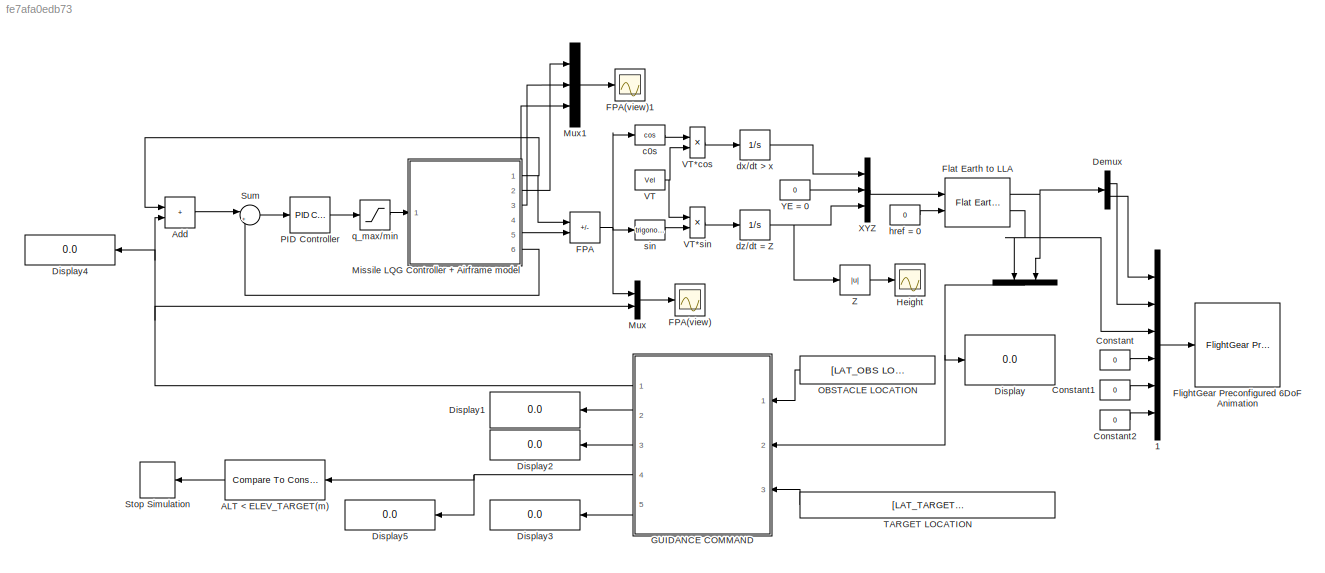
MODEL slx_fe7afa0edb73
KIND model
CONFIG AbsTol = auto
CONFIG EnableMultiTasking = off
CONFIG FixedStep = auto
CONFIG MaxStep = auto
CONFIG MinStep = auto
CONFIG RelTol = 1e-3
CONFIG SampleTimeConstraint = Unconstrained
CONFIG SolverName = VariableStepAuto
CONFIG StartTime = 0.0
CONFIG StopTime = 90
BLOCK [Mux]  
  DisplayOption = bar
  Inputs = 2
  NameLocation = left
  Ports = [2, 1]
BLOCK [Mux]  1
  DisplayOption = bar
  Inputs = 6
  Ports = [6, 1]
BLOCK [Reference] ALT < ELEV_TARGET(m)  REF=simulink/Logic and Bit
Operations/Compare
To Constant
  NameLocation = top
  Ports = [1, 1]
  SourceBlock = simulink/Logic and Bit\nOperations/Compare\nTo Constant
  SourceProductBaseCode = SL
  SourceType = Compare To Constant
BLOCK [Sum] Add
  IconShape = rectangular
  Ports = [2, 1]
BLOCK [Constant] Constant
  Value = 0
BLOCK [Constant] Constant1
  Value = 0
BLOCK [Constant] Constant2
  Value = 0
BLOCK [Demux] Demux
  Outputs = 2
  Ports = [1, 2]
BLOCK [Display] Display
  Decimation = 1
  Ports = [1]
BLOCK [Display] Display1
  Decimation = 1
  NameLocation = top
  Ports = [1]
BLOCK [Display] Display2
  Decimation = 1
  NameLocation = top
  Ports = [1]
BLOCK [Display] Display3
  Decimation = 1
  NameLocation = top
  Ports = [1]
BLOCK [Display] Display4
  Decimation = 1
  NameLocation = top
  Ports = [1]
BLOCK [Display] Display5
  Decimation = 1
  NameLocation = top
  Ports = [1]
BLOCK [Sum] FPA
  IconShape = rectangular
  Inputs = -+
  Ports = [2, 1]
BLOCK [Scope] FPA(view)
  Floating = off
  NumInputPorts = 1
  Ports = [1]
  ScopeSpecificationString = Simulink.scopes.TimeScopeBlockCfg('CurrentConfiguration', extmgr.ConfigurationSet(extmgr.Configuration('Core','General UI',true),extmgr.Configuration('Core','Source UI',true),extmgr.Configuration('Sources','WiredSimulink',true,'DataLoggingVariableName','ScopeData1'),extmgr.Configuration('Visuals','Time Domain',true,'SerializedDisplays',{struct('MinYLimReal','-0.0451','MaxYLimReal','0.404','YLabelR...<+1430ch>
BLOCK [Scope] FPA(view)1
  Floating = off
  NumInputPorts = 1
  Ports = [1]
  ScopeSpecificationString = Simulink.scopes.TimeScopeBlockCfg('CurrentConfiguration', extmgr.ConfigurationSet(extmgr.Configuration('Core','General UI',true),extmgr.Configuration('Core','Source UI',true),extmgr.Configuration('Sources','WiredSimulink',true,'DataLoggingVariableName','ScopeData3'),extmgr.Configuration('Visuals','Time Domain',true,'SerializedDisplays',{struct('MinYLimReal','-10.62946','MaxYLimReal','2.05485','YLa...<+1550ch>
BLOCK [Reference] Flat Earth to LLA  REF=aerolibtransform2/Flat Earth to LLA
  Ports = [2, 2]
  SourceBlock = aerolibtransform2/Flat Earth to LLA
  SourceProductBaseCode = AE
  SourceType = Flat Earth to LLA
BLOCK [Reference] FlightGear Preconfigured 6DoF Animation  REF=aerolibfltsims/FlightGear
Preconfigured
6DoF Animation
  Ports = [1]
  SourceBlock = aerolibfltsims/FlightGear\nPreconfigured\n6DoF Animation
  SourceProductBaseCode = AE
  SourceType = FlightGearQuick6DoFAnimation
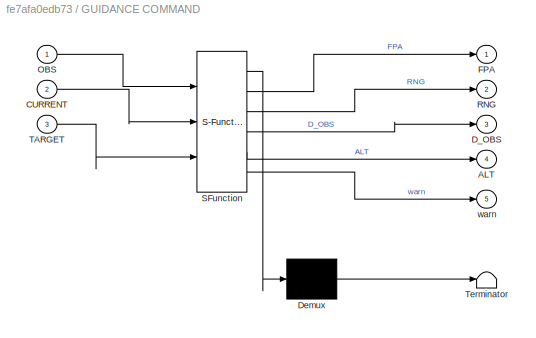
BLOCK [SubSystem] GUIDANCE COMMAND
  ErrorFcn = Stateflow.Translate.translate
  NameLocation = top
  PermitHierarchicalResolution = ExplicitOnly
  Ports = [3, 5]
  RequestExecContextInheritance = off
  SFBlockType = MATLAB Function
  TreatAsAtomicUnit = on
BLOCK [Demux] GUIDANCE COMMAND/ Demux 
  Outputs = 1
  Ports = [1, 1]
BLOCK [S-Function] GUIDANCE COMMAND/ SFunction 
  EnableBusSupport = on
  FunctionName = sf_sfun
  PortCounts = [3 6]
  Ports = [3, 6]
  SFcnIsStateOwnerBlock = off
  SFunctionDeploymentMode = off
  Tag = Stateflow S-Function 2
BLOCK [Terminator] GUIDANCE COMMAND/ Terminator 
BLOCK [Outport] GUIDANCE COMMAND/ALT
  Port = 4
BLOCK [Inport] GUIDANCE COMMAND/CURRENT
  Port = 2
BLOCK [Outport] GUIDANCE COMMAND/D_OBS
  Port = 3
BLOCK [Outport] GUIDANCE COMMAND/FPA
BLOCK [Inport] GUIDANCE COMMAND/OBS
BLOCK [Outport] GUIDANCE COMMAND/RNG
  Port = 2
BLOCK [Inport] GUIDANCE COMMAND/TARGET
  Port = 3
BLOCK [Outport] GUIDANCE COMMAND/warn
  Port = 5
BLOCK [Scope] Height
  Floating = off
  NumInputPorts = 1
  Ports = [1]
  ScopeSpecificationString = Simulink.scopes.TimeScopeBlockCfg('CurrentConfiguration', extmgr.ConfigurationSet(extmgr.Configuration('Core','General UI',true),extmgr.Configuration('Core','Source UI',true),extmgr.Configuration('Sources','WiredSimulink',true,'DataLoggingVariableName','ScopeData2'),extmgr.Configuration('Visuals','Time Domain',true,'SerializedDisplays',{struct('MinYLimReal','-1226.37569','MaxYLimReal','11247.38124...<+1465ch>
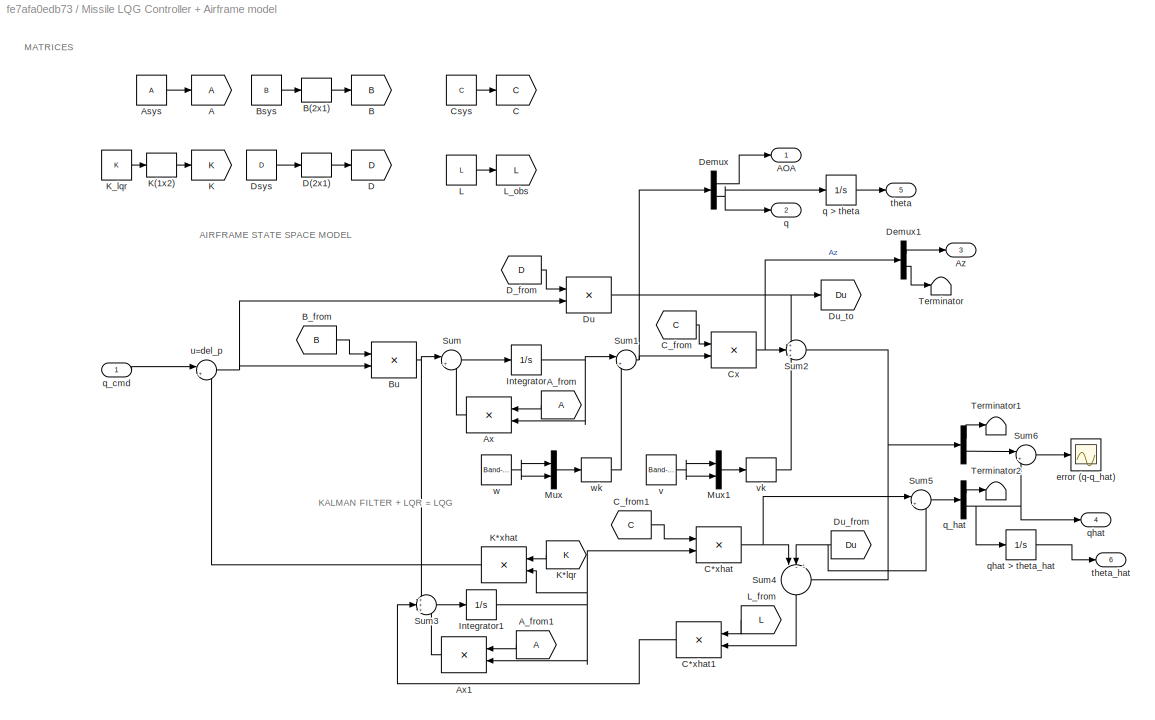
BLOCK [SubSystem] Missile LQG Controller + Airframe model
  Ports = [1, 6]
  RequestExecContextInheritance = off
BLOCK [Demux] Missile LQG Controller + Airframe model/ 
  Outputs = 2
  Ports = [1, 2]
BLOCK [Goto] Missile LQG Controller + Airframe model/A
BLOCK [Outport] Missile LQG Controller + Airframe model/AOA
BLOCK [From] Missile LQG Controller + Airframe model/A_from
  NameLocation = top
BLOCK [From] Missile LQG Controller + Airframe model/A_from1
  NameLocation = top
BLOCK [Constant] Missile LQG Controller + Airframe model/Asys
  Value = A
BLOCK [Product] Missile LQG Controller + Airframe model/Ax
  Multiplication = Matrix(*)
  NameLocation = top
  Ports = [2, 1]
BLOCK [Product] Missile LQG Controller + Airframe model/Ax1
  Multiplication = Matrix(*)
  NameLocation = top
  Ports = [2, 1]
BLOCK [Outport] Missile LQG Controller + Airframe model/Az
  Port = 3
BLOCK [Goto] Missile LQG Controller + Airframe model/B
  GotoTag = B
BLOCK [Reshape] Missile LQG Controller + Airframe model/B(2x1)
  OutputDimensionality = Customize
  OutputDimensions = [2,1]
  Ports = [1, 1]
BLOCK [From] Missile LQG Controller + Airframe model/B_from
  GotoTag = B
BLOCK [Constant] Missile LQG Controller + Airframe model/Bsys 
  Value = B
BLOCK [Product] Missile LQG Controller + Airframe model/Bu
  Multiplication = Matrix(*)
  Ports = [2, 1]
BLOCK [Goto] Missile LQG Controller + Airframe model/C
  GotoTag = C
BLOCK [Product] Missile LQG Controller + Airframe model/C*xhat
  Multiplication = Matrix(*)
  Ports = [2, 1]
BLOCK [Product] Missile LQG Controller + Airframe model/C*xhat1
  Multiplication = Matrix(*)
  NameLocation = top
  Ports = [2, 1]
BLOCK [From] Missile LQG Controller + Airframe model/C_from
  GotoTag = C
BLOCK [From] Missile LQG Controller + Airframe model/C_from1
  GotoTag = C
BLOCK [Constant] Missile LQG Controller + Airframe model/Csys
  Value = C
BLOCK [Product] Missile LQG Controller + Airframe model/Cx
  Multiplication = Matrix(*)
  Ports = [2, 1]
BLOCK [Goto] Missile LQG Controller + Airframe model/D
  GotoTag = D
BLOCK [Reshape] Missile LQG Controller + Airframe model/D(2x1)
  OutputDimensionality = Customize
  OutputDimensions = [2,1]
  Ports = [1, 1]
BLOCK [From] Missile LQG Controller + Airframe model/D_from
  GotoTag = D
BLOCK [Demux] Missile LQG Controller + Airframe model/Demux
  Outputs = 2
  Ports = [1, 2]
BLOCK [Demux] Missile LQG Controller + Airframe model/Demux1
  Outputs = 2
  Ports = [1, 2]
BLOCK [Constant] Missile LQG Controller + Airframe model/Dsys
  Value = D
BLOCK [Product] Missile LQG Controller + Airframe model/Du
  Multiplication = Matrix(*)
  Ports = [2, 1]
BLOCK [From] Missile LQG Controller + Airframe model/Du_from
  GotoTag = Du
  NameLocation = top
BLOCK [Goto] Missile LQG Controller + Airframe model/Du_to
  GotoTag = Du
BLOCK [Integrator] Missile LQG Controller + Airframe model/Integrator
  Ports = [1, 1]
BLOCK [Integrator] Missile LQG Controller + Airframe model/Integrator1
  Ports = [1, 1]
BLOCK [Goto] Missile LQG Controller + Airframe model/K
  GotoTag = K
BLOCK [Reshape] Missile LQG Controller + Airframe model/K(1x2)
  OutputDimensionality = Customize
  OutputDimensions = [1,2]
  Ports = [1, 1]
BLOCK [From] Missile LQG Controller + Airframe model/K*lqr
  GotoTag = K
  NameLocation = top
BLOCK [Product] Missile LQG Controller + Airframe model/K*xhat
  Multiplication = Matrix(*)
  NameLocation = top
  Ports = [2, 1]
BLOCK [Constant] Missile LQG Controller + Airframe model/K_lqr
  Value = K
BLOCK [Constant] Missile LQG Controller + Airframe model/L
  Value = L
BLOCK [From] Missile LQG Controller + Airframe model/L_from
  GotoTag = L
  NameLocation = top
BLOCK [Goto] Missile LQG Controller + Airframe model/L_obs
  GotoTag = L
BLOCK [Mux] Missile LQG Controller + Airframe model/Mux
  DisplayOption = bar
  Inputs = 2
  Ports = [2, 1]
BLOCK [Mux] Missile LQG Controller + Airframe model/Mux1
  DisplayOption = bar
  Inputs = 2
  Ports = [2, 1]
BLOCK [Sum] Missile LQG Controller + Airframe model/Sum
  Inputs = |++
  Ports = [2, 1]
BLOCK [Sum] Missile LQG Controller + Airframe model/Sum1
  Inputs = |++
  Ports = [2, 1]
BLOCK [Sum] Missile LQG Controller + Airframe model/Sum2
  Inputs = +++
  Ports = [3, 1]
BLOCK [Sum] Missile LQG Controller + Airframe model/Sum3
  Inputs = +++
  Ports = [3, 1]
BLOCK [Sum] Missile LQG Controller + Airframe model/Sum4
  Inputs = |--+
  NameLocation = left
  Ports = [3, 1]
BLOCK [Sum] Missile LQG Controller + Airframe model/Sum5
  Inputs = |++
  Ports = [2, 1]
BLOCK [Sum] Missile LQG Controller + Airframe model/Sum6
  Inputs = |+-
  Ports = [2, 1]
BLOCK [Terminator] Missile LQG Controller + Airframe model/Terminator
BLOCK [Terminator] Missile LQG Controller + Airframe model/Terminator1
BLOCK [Terminator] Missile LQG Controller + Airframe model/Terminator2
BLOCK [Scope] Missile LQG Controller + Airframe model/error (q-q_hat)
  Floating = off
  NumInputPorts = 1
  Ports = [1]
  ScopeSpecificationString = Simulink.scopes.TimeScopeBlockCfg('CurrentConfiguration', extmgr.ConfigurationSet(extmgr.Configuration('Core','General UI',true),extmgr.Configuration('Core','Source UI',true),extmgr.Configuration('Sources','WiredSimulink',true),extmgr.Configuration('Visuals','Time Domain',true,'SerializedDisplays',{struct('MinYLimReal','-0.03058','MaxYLimReal','0.02998','YLabelReal','','MinYLimMag','0.00000','MaxY...<+1324ch>
BLOCK [Outport] Missile LQG Controller + Airframe model/q
  Port = 2
BLOCK [Integrator] Missile LQG Controller + Airframe model/q > theta
  Ports = [1, 1]
BLOCK [Inport] Missile LQG Controller + Airframe model/q_cmd
BLOCK [Demux] Missile LQG Controller + Airframe model/q_hat
  Outputs = 2
  Ports = [1, 2]
BLOCK [Outport] Missile LQG Controller + Airframe model/qhat
  Port = 4
BLOCK [Integrator] Missile LQG Controller + Airframe model/qhat > theta_hat
  Ports = [1, 1]
BLOCK [Outport] Missile LQG Controller + Airframe model/theta
  Port = 5
BLOCK [Outport] Missile LQG Controller + Airframe model/theta_hat
  Port = 6
BLOCK [Sum] Missile LQG Controller + Airframe model/u=del_p
  Inputs = |+-
  Ports = [2, 1]
BLOCK [Reference] Missile LQG Controller + Airframe model/v  REF=simulink/Sources/Band-Limited
White Noise
  Ports = [0, 1]
  SourceBlock = simulink/Sources/Band-Limited\nWhite Noise
  SourceProductBaseCode = SL
  SourceType = Band-Limited White Noise.
BLOCK [Reshape] Missile LQG Controller + Airframe model/vk
  OutputDimensionality = Customize
  OutputDimensions = [2,1]
  Ports = [1, 1]
BLOCK [Reference] Missile LQG Controller + Airframe model/w  REF=simulink/Sources/Band-Limited
White Noise
  Ports = [0, 1]
  SourceBlock = simulink/Sources/Band-Limited\nWhite Noise
  SourceProductBaseCode = SL
  SourceType = Band-Limited White Noise.
BLOCK [Reshape] Missile LQG Controller + Airframe model/wk
  OutputDimensionality = Customize
  OutputDimensions = [2,1]
  Ports = [1, 1]
BLOCK [Mux] Mux
  DisplayOption = bar
  Inputs = 2
  Ports = [2, 1]
BLOCK [Mux] Mux1
  DisplayOption = bar
  Inputs = 3
  Ports = [3, 1]
BLOCK [Constant] OBSTACLE LOCATION
  NameLocation = top
  Value = [LAT_OBS LON_OBS]
BLOCK [Reference] PID Controller  REF=pid_lib/PID Controller
  Ports = [1, 1]
  SourceBlock = pid_lib/PID Controller
  SourceProductBaseCode = SL
  SourceType = PID 1dof
BLOCK [Stop] Stop Simulation
  NameLocation = top
BLOCK [Sum] Sum
  Inputs = |+-
  Ports = [2, 1]
BLOCK [Constant] TARGET LOCATION
  NameLocation = top
  Value = [LAT_TARGET LON_TARGET ELEV_TARGET]
BLOCK [Constant] VT
  Value = Vel
BLOCK [Product] VT*cos
  Ports = [2, 1]
BLOCK [Product] VT*sin
  Ports = [2, 1]
BLOCK [Mux] XYZ
  DisplayOption = bar
  Inputs = 3
  Ports = [3, 1]
BLOCK [Constant] YE = 0
  Value = 0
BLOCK [Abs] Z
  SaturateOnIntegerOverflow = off
BLOCK [Trigonometry] c0s
  Operator = cos
  Ports = [1, 1]
BLOCK [Integrator] dx//dt > x
  Ports = [1, 1]
BLOCK [Integrator] dz//dt = Z
  InitialCondition = -ELEV_INIT
  Ports = [1, 1]
BLOCK [Constant] href = 0
  Value = 0
BLOCK [Saturate] q_max//min
BLOCK [Trigonometry] sin
  Ports = [1, 1]
ANNOTATION Missile LQG Controller + Airframe model: AIRFRAME STATE SPACE MODEL
ANNOTATION Missile LQG Controller + Airframe model: KALMAN FILTER + LQR = LQG
ANNOTATION Missile LQG Controller + Airframe model: MATRICES
LINE  1:1 -> FlightGear Preconfigured 6DoF Animation:1
NET  :1 -> Display:1, GUIDANCE COMMAND:2
LINE ALT < ELEV_TARGET(m):1 -> Stop Simulation:1
LINE Add:1 -> Sum:1
LINE Constant1:1 ->  1:5
LINE Constant2:1 ->  1:6
LINE Constant:1 ->  1:4
LINE Demux:1 ->  1:2
LINE Demux:2 ->  1:1
NET FPA:1 -> Mux:1, c0s:1, sin:1
NET Flat Earth to LLA:1 ->  :2, Demux:1
NET Flat Earth to LLA:2 ->  1:3,  :1
NET GUIDANCE COMMAND:1 -> Add:2, Display4:1, Mux:2
LINE GUIDANCE COMMAND:2 -> Display1:1
LINE GUIDANCE COMMAND:3 -> Display2:1
NET GUIDANCE COMMAND:4 -> ALT < ELEV_TARGET(m):1, Display5:1
LINE GUIDANCE COMMAND:5 -> Display3:1
LINE Missile LQG Controller + Airframe model/ :1 -> Missile LQG Controller + Airframe model/Terminator1:1
LINE Missile LQG Controller + Airframe model/ :2 -> Missile LQG Controller + Airframe model/Sum6:1
LINE Missile LQG Controller + Airframe model/A_from1:1 -> Missile LQG Controller + Airframe model/Ax1:1
LINE Missile LQG Controller + Airframe model/A_from:1 -> Missile LQG Controller + Airframe model/Ax:1
LINE Missile LQG Controller + Airframe model/Asys:1 -> Missile LQG Controller + Airframe model/A:1
LINE Missile LQG Controller + Airframe model/Ax1:1 -> Missile LQG Controller + Airframe model/Sum3:3
LINE Missile LQG Controller + Airframe model/Ax:1 -> Missile LQG Controller + Airframe model/Sum:2
LINE Missile LQG Controller + Airframe model/B(2x1):1 -> Missile LQG Controller + Airframe model/B:1
LINE Missile LQG Controller + Airframe model/B_from:1 -> Missile LQG Controller + Airframe model/Bu:1
LINE Missile LQG Controller + Airframe model/Bsys :1 -> Missile LQG Controller + Airframe model/B(2x1):1
NET Missile LQG Controller + Airframe model/Bu:1 -> Missile LQG Controller + Airframe model/Sum3:1, Missile LQG Controller + Airframe model/Sum:1
LINE Missile LQG Controller + Airframe model/C*xhat1:1 -> Missile LQG Controller + Airframe model/Sum3:2
NET Missile LQG Controller + Airframe model/C*xhat:1 -> Missile LQG Controller + Airframe model/Sum4:1, Missile LQG Controller + Airframe model/Sum5:1
LINE Missile LQG Controller + Airframe model/C_from1:1 -> Missile LQG Controller + Airframe model/C*xhat:1
LINE Missile LQG Controller + Airframe model/C_from:1 -> Missile LQG Controller + Airframe model/Cx:1
LINE Missile LQG Controller + Airframe model/Csys:1 -> Missile LQG Controller + Airframe model/C:1
NET Missile LQG Controller + Airframe model/Cx:1 -> Missile LQG Controller + Airframe model/Demux1:1, Missile LQG Controller + Airframe model/Sum2:2
LINE Missile LQG Controller + Airframe model/D(2x1):1 -> Missile LQG Controller + Airframe model/D:1
LINE Missile LQG Controller + Airframe model/D_from:1 -> Missile LQG Controller + Airframe model/Du:1
LINE Missile LQG Controller + Airframe model/Demux1:1 -> Missile LQG Controller + Airframe model/Az:1
LINE Missile LQG Controller + Airframe model/Demux1:2 -> Missile LQG Controller + Airframe model/Terminator:1
LINE Missile LQG Controller + Airframe model/Demux:1 -> Missile LQG Controller + Airframe model/AOA:1
NET Missile LQG Controller + Airframe model/Demux:2 -> Missile LQG Controller + Airframe model/q > theta:1, Missile LQG Controller + Airframe model/q:1
LINE Missile LQG Controller + Airframe model/Dsys:1 -> Missile LQG Controller + Airframe model/D(2x1):1
NET Missile LQG Controller + Airframe model/Du:1 -> Missile LQG Controller + Airframe model/Du_to:1, Missile LQG Controller + Airframe model/Sum2:1
NET Missile LQG Controller + Airframe model/Du_from:1 -> Missile LQG Controller + Airframe model/Sum4:2, Missile LQG Controller + Airframe model/Sum5:2
NET Missile LQG Controller + Airframe model/Integrator1:1 -> Missile LQG Controller + Airframe model/Ax1:2, Missile LQG Controller + Airframe model/C*xhat:2, Missile LQG Controller + Airframe model/K*xhat:2
NET Missile LQG Controller + Airframe model/Integrator:1 -> Missile LQG Controller + Airframe model/Ax:2, Missile LQG Controller + Airframe model/Sum1:1
LINE Missile LQG Controller + Airframe model/K(1x2):1 -> Missile LQG Controller + Airframe model/K:1
LINE Missile LQG Controller + Airframe model/K*lqr:1 -> Missile LQG Controller + Airframe model/K*xhat:1
LINE Missile LQG Controller + Airframe model/K*xhat:1 -> Missile LQG Controller + Airframe model/u=del_p:2
LINE Missile LQG Controller + Airframe model/K_lqr:1 -> Missile LQG Controller + Airframe model/K(1x2):1
LINE Missile LQG Controller + Airframe model/L:1 -> Missile LQG Controller + Airframe model/L_obs:1
LINE Missile LQG Controller + Airframe model/L_from:1 -> Missile LQG Controller + Airframe model/C*xhat1:1
LINE Missile LQG Controller + Airframe model/Mux1:1 -> Missile LQG Controller + Airframe model/vk:1
LINE Missile LQG Controller + Airframe model/Mux:1 -> Missile LQG Controller + Airframe model/wk:1
NET Missile LQG Controller + Airframe model/Sum1:1 -> Missile LQG Controller + Airframe model/Cx:2, Missile LQG Controller + Airframe model/Demux:1
NET Missile LQG Controller + Airframe model/Sum2:1 -> Missile LQG Controller + Airframe model/ :1, Missile LQG Controller + Airframe model/Sum4:3
LINE Missile LQG Controller + Airframe model/Sum3:1 -> Missile LQG Controller + Airframe model/Integrator1:1
LINE Missile LQG Controller + Airframe model/Sum4:1 -> Missile LQG Controller + Airframe model/C*xhat1:2
LINE Missile LQG Controller + Airframe model/Sum5:1 -> Missile LQG Controller + Airframe model/q_hat:1
LINE Missile LQG Controller + Airframe model/Sum6:1 -> Missile LQG Controller + Airframe model/error (q-q_hat):1
LINE Missile LQG Controller + Airframe model/Sum:1 -> Missile LQG Controller + Airframe model/Integrator:1
LINE Missile LQG Controller + Airframe model/q > theta:1 -> Missile LQG Controller + Airframe model/theta:1
LINE Missile LQG Controller + Airframe model/q_cmd:1 -> Missile LQG Controller + Airframe model/u=del_p:1
LINE Missile LQG Controller + Airframe model/q_hat:1 -> Missile LQG Controller + Airframe model/Terminator2:1
NET Missile LQG Controller + Airframe model/q_hat:2 -> Missile LQG Controller + Airframe model/Sum6:2, Missile LQG Controller + Airframe model/qhat > theta_hat:1, Missile LQG Controller + Airframe model/qhat:1
LINE Missile LQG Controller + Airframe model/qhat > theta_hat:1 -> Missile LQG Controller + Airframe model/theta_hat:1
NET Missile LQG Controller + Airframe model/u=del_p:1 -> Missile LQG Controller + Airframe model/Bu:2, Missile LQG Controller + Airframe model/Du:2
NET Missile LQG Controller + Airframe model/v:1 -> Missile LQG Controller + Airframe model/Mux1:1, Missile LQG Controller + Airframe model/Mux1:2
LINE Missile LQG Controller + Airframe model/vk:1 -> Missile LQG Controller + Airframe model/Sum2:3
NET Missile LQG Controller + Airframe model/w:1 -> Missile LQG Controller + Airframe model/Mux:1, Missile LQG Controller + Airframe model/Mux:2
LINE Missile LQG Controller + Airframe model/wk:1 -> Missile LQG Controller + Airframe model/Sum1:2
NET Missile LQG Controller + Airframe model:1 -> Add:1, FPA:1
LINE Missile LQG Controller + Airframe model:2 -> Mux1:1
LINE Missile LQG Controller + Airframe model:3 -> Mux1:2
LINE Missile LQG Controller + Airframe model:4 -> Mux1:3
LINE Missile LQG Controller + Airframe model:5 -> FPA:2
LINE Missile LQG Controller + Airframe model:6 -> Sum:2
LINE Mux1:1 -> FPA(view)1:1
LINE Mux:1 -> FPA(view):1
LINE OBSTACLE LOCATION:1 -> GUIDANCE COMMAND:1
LINE PID Controller:1 -> q_max//min:1
LINE Sum:1 -> PID Controller:1
LINE TARGET LOCATION:1 -> GUIDANCE COMMAND:3
LINE VT*cos:1 -> dx//dt > x:1
LINE VT*sin:1 -> dz//dt = Z:1
NET VT:1 -> VT*cos:2, VT*sin:1
LINE XYZ:1 -> Flat Earth to LLA:1
LINE YE = 0:1 -> XYZ:2
LINE Z:1 -> Height:1
LINE c0s:1 -> VT*cos:1
LINE dx//dt > x:1 -> XYZ:1
NET dz//dt = Z:1 -> XYZ:3, Z:1
LINE href = 0:1 -> Flat Earth to LLA:2
LINE q_max//min:1 -> Missile LQG Controller + Airframe model:1
LINE sin:1 -> VT*sin:2
note: NET lines group one-source signal fan-out (src -> all destinations, sorted); 1:1 wires keep LINE
CHART GUIDANCE COMMAND states=1 transitions=1
  STATE_LABEL 'eML_blk_kernel()'
  STATE_LABEL 'SCRIPT:\nfunction [FPA,RNG,D_OBS,ALT,warn] = fcn(OBS, CURRENT, TARGET)\n\nR = 6371e3;\nd2r = pi/180;\n\nLAT_OBS = OBS(1);\nLON_OBS = OBS(2);\n\nthres = 2000;\n\nLAT_TARGET = TARGET(1);\nLON_TARGET = TARGET(2);\nELEV_TARGET = TARGET(3);\n\nELEV_CUR = CURRENT(1);\nLAT_CUR = CURRENT(2);\nLON_CUR = CURRENT(3);\n\nl1 = LAT_CUR*d2r;\nu1 = LON_CUR*d2r;\nl2 = LAT_TARGET*d2r;\nu2 = LON_TARGET*d2r;\ndh = abs(ELEV_TARGET-ELEV_CUR)...<+469ch>'
CHART  states=0 transitions=0
